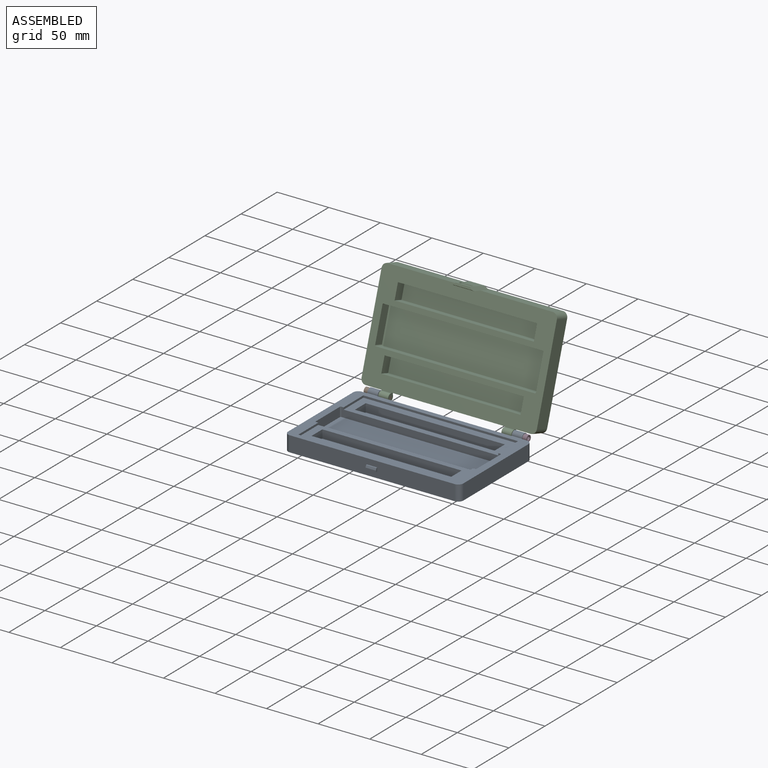
[diagram: assembled view]
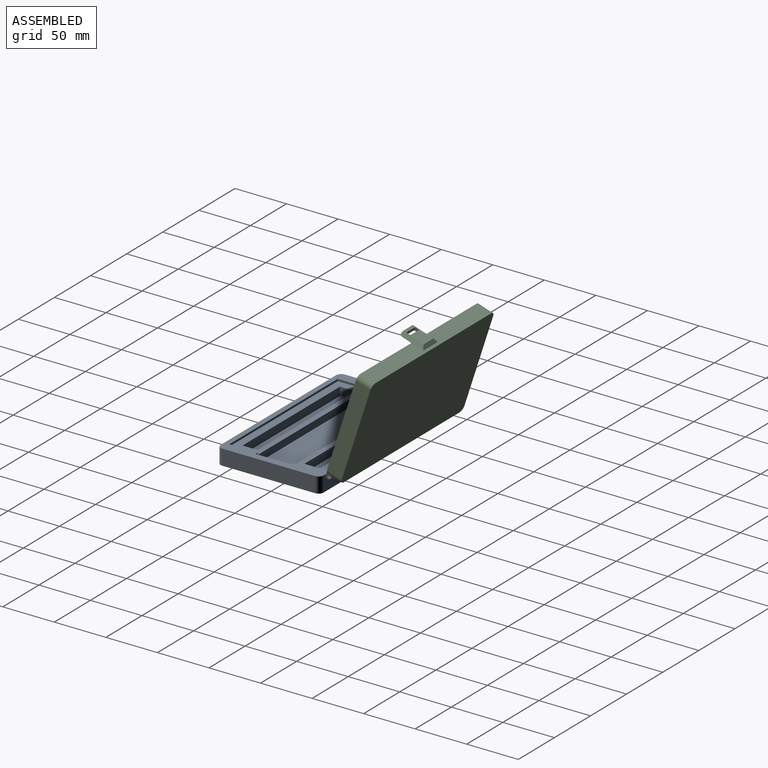
[diagram: assembled view, second angle]
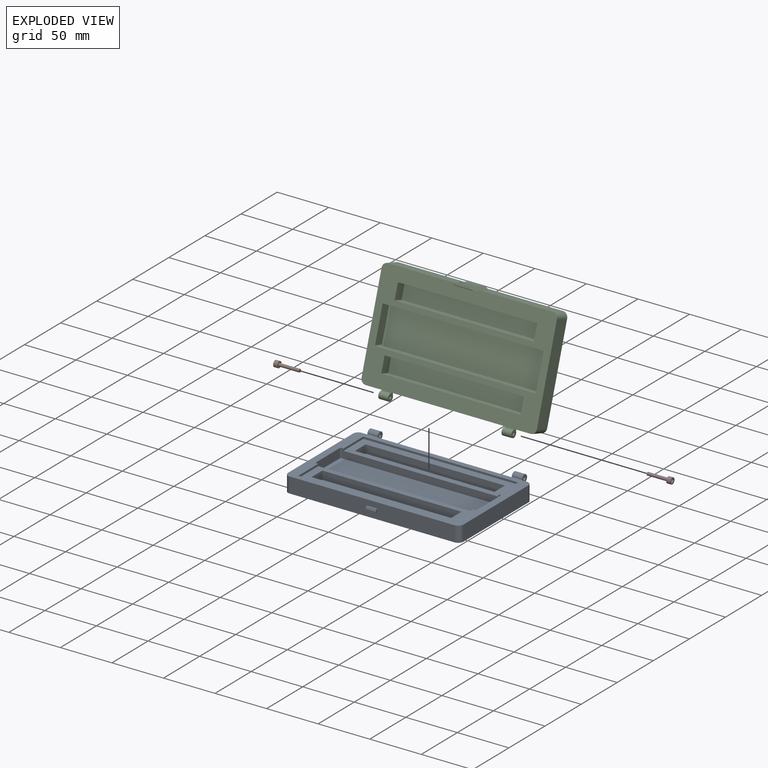
[diagram: exploded view]
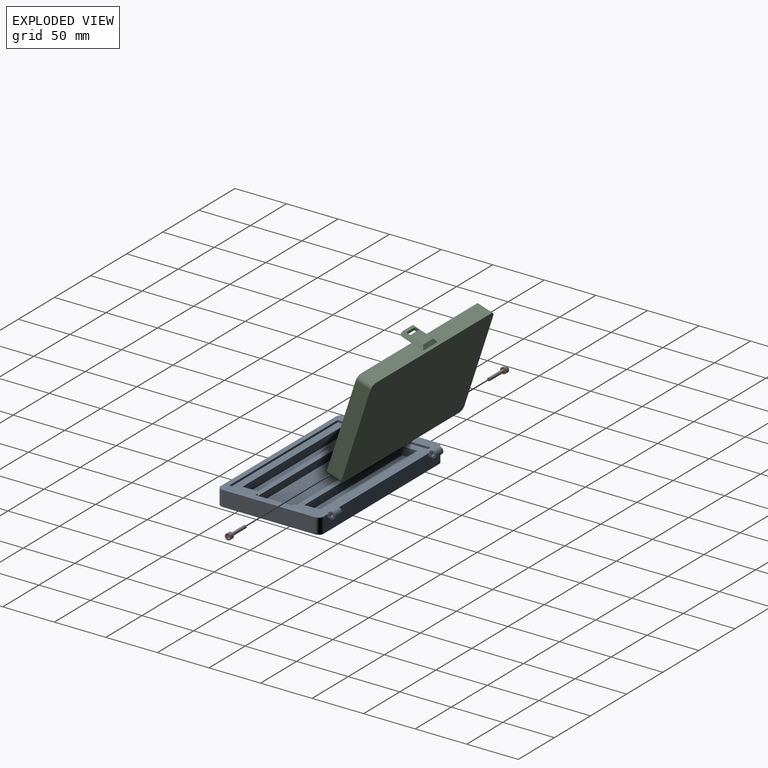
[diagram: exploded view, second angle]
ASSEMBLY  parts=4 mates=3
PART A: 53 faces, bbox 170x109.5x18.5 mm
  f0: plane 170x100.5mm, normal (0,0,1), area 3279.4mm2, adj f1,f2,f3,f4,f11,f12,f13,f14
  f1: plane 90x15mm, normal (-1,0,0), area 1350mm2, adj f0,f15,f25,f52
  f2: plane 90x15mm, normal (1,0,0), area 1350mm2, adj f0,f15,f26,f51
  f3: cylinder r=3.5mm len=10mm, axis (-1,0,0), area 192.1mm2, adj f0,f5,f43,f44
  f4: cylinder r=3.5mm len=10mm, axis (-1,0,0), area 192.1mm2, adj f0,f6,f41,f42
  f5: plane 10x1.55mm, normal (0,0,-1), area 15.5mm2, adj f3,f14,f43,f44
  f6: plane 10x1.55mm, normal (0,0,-1), area 15.5mm2, adj f4,f14,f41,f42
  f7: plane 3.5x2mm, normal (1,0,0), area 6.2mm2, adj f13,f27,f28,f29,f40
  f8: plane 3.5x2mm, normal (-1,0,0), area 6.2mm2, adj f13,f27,f28,f29,f40
  f9: plane 150x27.5mm, normal (0,0,1), area 2100mm2, adj f11,f12,f19,f20,f35,f36,f37,f38
  f10: plane 150x27.5mm, normal (0,0,1), area 2100mm2, adj f16,f17,f18,f22,f30,f31,f32,f33
  f11: plane 27.5x2mm, normal (-1,0,0), area 55mm2, adj f0,f9,f19,f20
  f12: plane 27.5x2mm, normal (1,0,0), area 55mm2, adj f0,f9,f19,f20
  f13: plane 160x15mm, normal (0,-1,0), area 2365mm2, adj f0,f7,f8,f15,f25,f26,f27,f28
  f14: plane 160x15mm, normal (0,1,0), area 2350mm2, adj f0,f5,f6,f15,f41,f42,f43,f44
  f15: plane 170x100mm, normal (0,0,-1), area 16978.5mm2, adj f1,f2,f13,f14,f25,f26,f51,f52
  f16: plane 27.5x2mm, normal (-1,0,0), area 55mm2, adj f0,f10,f17,f22
  f17: plane 150x2mm, normal (0,-1,0), area 300mm2, adj f0,f10,f16,f18
  f18: plane 27.5x2mm, normal (1,0,0), area 55mm2, adj f0,f10,f17,f22
  f19: plane 150x2mm, normal (0,1,0), area 300mm2, adj f0,f9,f11,f12
  f20: plane 154x9mm, normal (0,1,0), area 1086mm2, adj f0,f9,f11,f12,f24,f48,f50
  f21: plane 33x9mm, normal (-1,0,0), area 297mm2, adj f0,f24,f47,f48
  f22: plane 154x9mm, normal (0,-1,0), area 1086mm2, adj f0,f10,f16,f18,f24,f47,f49
  f23: plane 33x9mm, normal (1,0,0), area 297mm2, adj f0,f24,f49,f50
  f24: plane 156x35mm, normal (0,0,1), area 5459.1mm2, adj f20,f21,f22,f23,f47,f48,f49,f50
  f25: cylinder r=5mm len=15mm, axis (0,0,1), area 117.8mm2, adj f0,f1,f13,f15
  f26: cylinder r=5mm len=15mm, axis (0,0,-1), area 117.8mm2, adj f0,f2,f13,f15
  f27: plane 10x1.25mm, normal (0,0,1), area 12.5mm2, adj f7,f8,f13,f40
  f28: plane 10x2mm, normal (0,0,-1), area 20mm2, adj f7,f8,f13,f29
  f29: plane 10x1.5mm, normal (0,-1,0), area 15mm2, adj f7,f8,f28,f40
  f30: plane 15x8mm, normal (1,0,0), area 120mm2, adj f10,f31,f33,f34
  f31: plane 135x8mm, normal (0,1,0), area 1080mm2, adj f10,f30,f32,f34
  f32: plane 15x8mm, normal (-1,0,0), area 120mm2, adj f10,f31,f33,f34
  f33: plane 135x8mm, normal (0,-1,0), area 1080mm2, adj f10,f30,f32,f34
  f34: plane 135x15mm, normal (0,0,1), area 2025mm2, adj f30,f31,f32,f33
  f35: plane 135x8mm, normal (0,-1,0), area 1080mm2, adj f9,f36,f38,f39
  f36: plane 15x8mm, normal (1,0,0), area 120mm2, adj f9,f35,f37,f39
  f37: plane 135x8mm, normal (0,1,0), area 1080mm2, adj f9,f36,f38,f39
  f38: plane 15x8mm, normal (-1,0,0), area 120mm2, adj f9,f35,f37,f39
  f39: plane 135x15mm, normal (0,0,1), area 2025mm2, adj f35,f36,f37,f38
  f40: plane 10x2mm, normal (0,-0.94,0.35), area 21.4mm2, adj f7,f8,f27,f29
  f41: plane 7.5x7mm, normal (-1,0,0), area 32mm2, adj f0,f4,f6,f14,f45
  f42: plane 7.5x7mm, normal (1,0,0), area 32mm2, adj f0,f4,f6,f14,f45
  f43: plane 7.5x7mm, normal (-1,0,0), area 32mm2, adj f0,f3,f5,f14,f46
  f44: plane 7.5x7mm, normal (1,0,0), area 32mm2, adj f0,f3,f5,f14,f46
  f45: cylinder r=1.65mm len=10mm, axis (-1,0,0), area 103.7mm2, adj f41,f42
  f46: cylinder r=1.65mm len=10mm, axis (-1,0,0), area 103.7mm2, adj f43,f44
  f47: cylinder r=1mm len=9mm, axis (0,0,1), area 14.1mm2, adj f0,f21,f22,f24
  f48: cylinder r=1mm len=9mm, axis (0,0,-1), area 14.1mm2, adj f0,f20,f21,f24
  f49: cylinder r=1mm len=9mm, axis (0,0,-1), area 14.1mm2, adj f0,f22,f23,f24
  f50: cylinder r=1mm len=9mm, axis (0,0,1), area 14.1mm2, adj f0,f20,f23,f24
  f51: cylinder r=5mm len=15mm, axis (0,0,1), area 117.8mm2, adj f0,f2,f14,f15
  f52: cylinder r=5mm len=15mm, axis (0,0,-1), area 117.8mm2, adj f0,f1,f14,f15
PART B: 12 faces, bbox 24x6x6 mm
  f0: plane 6x6mm, normal (-1,0,0), area 17.4mm2, adj f3,f5,f6,f7,f8,f9,f10
  f1: cylinder r=1.5mm len=20mm, axis (-1,0,0), area 188.5mm2, adj f2,f4
  f2: plane 3x3mm, normal (1,0,0), area 7.1mm2, adj f1
  f3: cylinder r=3mm len=6mm, axis (1,0,0), area 75.4mm2, adj f0,f4
  f4: plane 6x6mm, normal (1,0,0), area 21.2mm2, adj f1,f3
  f5: plane 3x2.04mm, normal (0,0,-1), area 6.1mm2, adj f0,f6,f10,f11
  f6: plane 3x1.77mm, normal (0,-0.87,-0.5), area 6.1mm2, adj f0,f5,f7,f11
  f7: plane 3x1.77mm, normal (0,-0.87,0.5), area 6.1mm2, adj f0,f6,f8,f11
  f8: plane 3x2.04mm, normal (0,0,1), area 6.1mm2, adj f0,f7,f9,f11
  f9: plane 3x1.77mm, normal (0,0.87,0.5), area 6.1mm2, adj f0,f8,f10,f11
  f10: plane 3x1.77mm, normal (0,0.87,-0.5), area 6.1mm2, adj f0,f5,f9,f11
  f11: plane 4.08x3.54mm, normal (-1,0,0), area 10.8mm2, adj f5,f6,f7,f8,f9,f10
PART C: 50 faces, bbox 170x110.5x27 mm
  f0: plane 170x100.5mm, normal (0,0,1), area 7478.9mm2, adj f1,f4,f5,f6,f7,f8,f10,f11
  f1: cylinder r=3.5mm len=9.5mm, axis (-1,0,0), area 182.5mm2, adj f0,f2,f38,f39
  f2: plane 9.5x1.55mm, normal (0,0,-1), area 14.7mm2, adj f1,f5,f38,f39
  f3: cylinder r=1.4mm len=9.5mm, axis (-1,0,0), area 83.6mm2, adj f38,f39
  f4: plane 20x9.5mm, normal (0,-1,0), area 142mm2, adj f0,f17,f18,f19,f21,f23,f41,f43
  f5: plane 160x15mm, normal (0,-1,0), area 2352.5mm2, adj f0,f2,f9,f34,f36,f38,f39,f40
  f6: plane 90x15mm, normal (1,0,0), area 1350mm2, adj f0,f9,f15,f48
  f7: plane 160x15mm, normal (0,1,0), area 2160mm2, adj f0,f9,f15,f16,f41,f42,f43
  f8: plane 90x15mm, normal (-1,0,0), area 1350mm2, adj f0,f9,f16,f49
  f9: plane 170x100mm, normal (0,0,-1), area 16978.5mm2, adj f5,f6,f7,f8,f15,f16,f48,f49
  f10: plane 154x10mm, normal (0,1,0), area 1540mm2, adj f0,f14,f44,f47
  f11: plane 33x10mm, normal (-1,0,0), area 330mm2, adj f0,f14,f44,f45
  f12: plane 154x10mm, normal (0,-1,0), area 1540mm2, adj f0,f14,f45,f46
  f13: plane 33x10mm, normal (1,0,0), area 330mm2, adj f0,f14,f46,f47
  f14: plane 156x35mm, normal (0,0,1), area 5459.1mm2, adj f10,f11,f12,f13,f44,f45,f46,f47
  f15: cylinder r=5mm len=15mm, axis (0,0,1), area 117.8mm2, adj f0,f6,f7,f9
  f16: cylinder r=5mm len=15mm, axis (0,0,-1), area 117.8mm2, adj f0,f7,f8,f9
  f17: plane 12x3mm, normal (0,0,-1), area 36mm2, adj f4,f18,f21,f22
  f18: plane 4x3mm, normal (1,0,0), area 12mm2, adj f4,f17,f19,f22
  f19: plane 12x3mm, normal (0,0,1), area 36mm2, adj f4,f18,f21,f22
  f20: plane 18.5x2.25mm, normal (0,0,1), area 36.6mm2, adj f22,f23,f41,f43
  f21: plane 4x3mm, normal (-1,0,0), area 12mm2, adj f4,f17,f19,f22
  f22: plane 21x14mm, normal (0,1,0), area 246mm2, adj f17,f18,f19,f20,f21,f41,f42,f43
  f23: plane 20x2.5mm, normal (0,-0.96,0.29), area 50.2mm2, adj f4,f20,f41,f43
  f24: plane 135x10mm, normal (0,-1,0), area 1350mm2, adj f0,f25,f27,f28
  f25: plane 15x10mm, normal (1,0,0), area 150mm2, adj f0,f24,f26,f28
  f26: plane 135x10mm, normal (0,1,0), area 1350mm2, adj f0,f25,f27,f28
  f27: plane 15x10mm, normal (-1,0,0), area 150mm2, adj f0,f24,f26,f28
  f28: plane 135x15mm, normal (0,0,1), area 2025mm2, adj f24,f25,f26,f27
  f29: plane 135x10mm, normal (0,-1,0), area 1350mm2, adj f0,f30,f32,f33
  f30: plane 15x10mm, normal (1,0,0), area 150mm2, adj f0,f29,f31,f33
  f31: plane 135x10mm, normal (0,1,0), area 1350mm2, adj f0,f30,f32,f33
  f32: plane 15x10mm, normal (-1,0,0), area 150mm2, adj f0,f29,f31,f33
  f33: plane 135x15mm, normal (0,0,1), area 2025mm2, adj f29,f30,f31,f32
  f34: plane 7.5x7mm, normal (1,0,0), area 34.4mm2, adj f0,f5,f35,f36,f37
  f35: cylinder r=3.5mm len=9.5mm, axis (-1,0,0), area 182.5mm2, adj f0,f34,f36,f40
  f36: plane 9.5x1.55mm, normal (0,0,-1), area 14.7mm2, adj f5,f34,f35,f40
  f37: cylinder r=1.4mm len=9.5mm, axis (-1,0,0), area 83.6mm2, adj f34,f40
  f38: plane 7.5x7mm, normal (-1,0,0), area 34.4mm2, adj f0,f1,f2,f3,f5
  f39: plane 7.5x7mm, normal (1,0,0), area 34.4mm2, adj f0,f1,f2,f3,f5
  f40: plane 7.5x7mm, normal (-1,0,0), area 34.4mm2, adj f0,f5,f35,f36,f37
  f41: plane 24x3mm, normal (0.71,0.71,0), area 94.1mm2, adj f4,f7,f20,f22,f23,f42
  f42: plane 20x3mm, normal (0,0.71,-0.71), area 72.1mm2, adj f7,f22,f41,f43
  f43: plane 24x3mm, normal (-0.71,0.71,0), area 94.1mm2, adj f4,f7,f20,f22,f23,f42
  f44: cylinder r=1mm len=10mm, axis (0,0,1), area 15.7mm2, adj f0,f10,f11,f14
  f45: cylinder r=1mm len=10mm, axis (0,0,-1), area 15.7mm2, adj f0,f11,f12,f14
  f46: cylinder r=1mm len=10mm, axis (0,0,1), area 15.7mm2, adj f0,f12,f13,f14
  f47: cylinder r=1mm len=10mm, axis (0,0,-1), area 15.7mm2, adj f0,f10,f13,f14
  f48: cylinder r=5mm len=15mm, axis (0,0,-1), area 117.8mm2, adj f0,f5,f6,f9
  f49: cylinder r=5mm len=15mm, axis (0,0,1), area 117.8mm2, adj f0,f5,f8,f9
PART D: same geometry as B
PLACE A t=(-17.06,-15.19,-11.74)mm fixed
PLACE B t=(-17.06,-15.19,-11.74)mm
PLACE C rot(axis=(1,0,0),72.1deg) t=(-17.06,71.07,-100.31)mm
PLACE D rot(axis=(0,-1,0),180deg) t=(152.94,-15.19,18.26)mm
MATE fastened D.f1 <-> A.f3  axis (-1,0,0) through (142.94,88.81,3.26)mm
MATE fastened B.f1 <-> A.f3  axis (-1,0,0) through (-7.06,88.81,3.26)mm
MATE revolute A.f3 <-> C.f1  axis (1,0,0) through (2.94,88.81,3.26)mm
